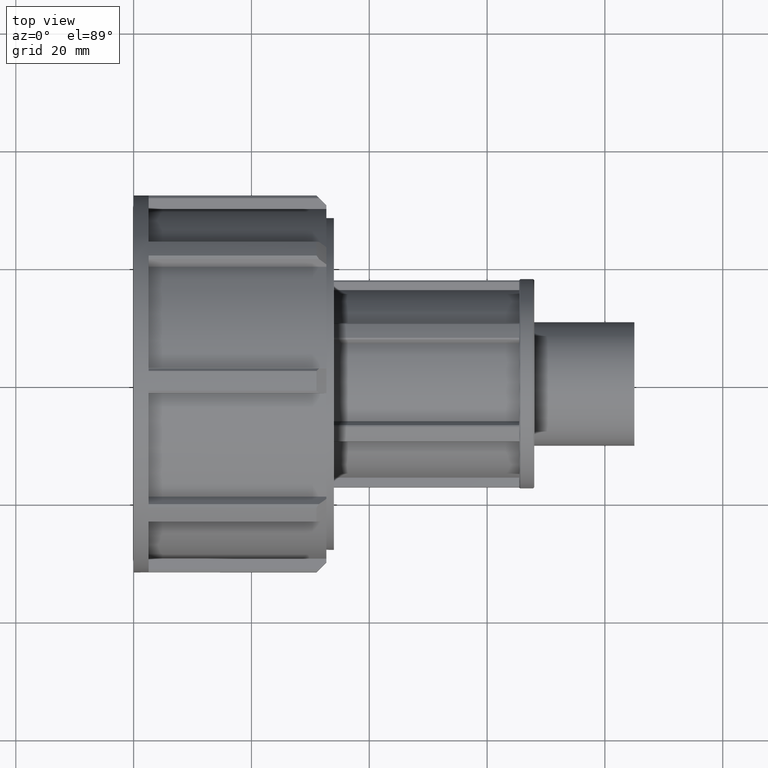
[diagram: clean part render]
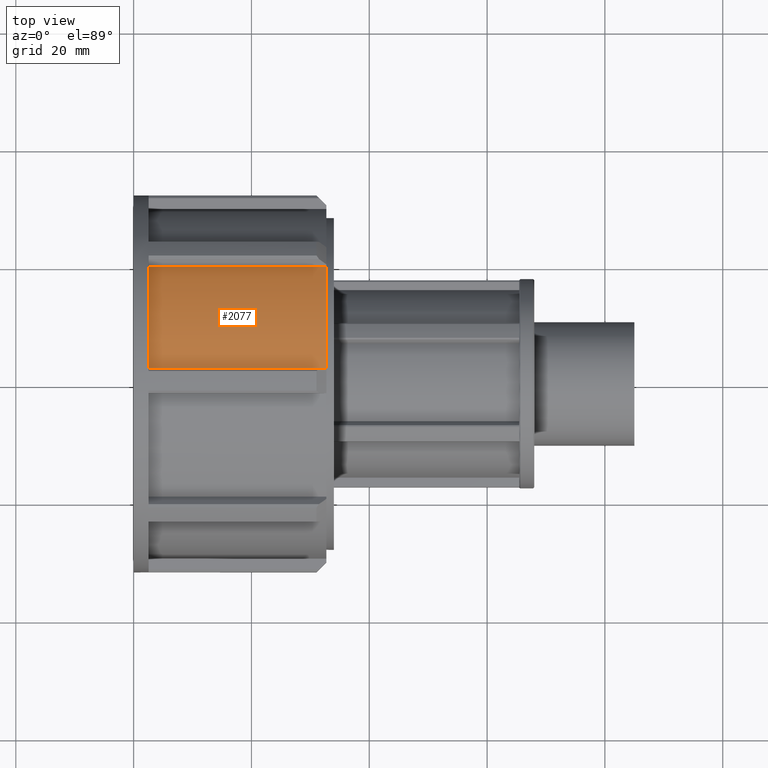
[diagram: same view with one face highlighted and labeled with its STEP entity id]
A machine part, top view. The second image highlights one B-rep face of the part: STEP entity #2077.
In plain terms, the highlighted cylindrical surface (partial cylindrical patch) has radius 29.76 mm, axis along (1, 0, 0).
Its self-contained STEP definition (entity closure, byte-faithful):
#149=CIRCLE('',#2257,29.76);
#152=CIRCLE('',#2266,29.76);
#187=CYLINDRICAL_SURFACE('',#2265,29.76);
#294=FACE_OUTER_BOUND('',#417,.T.);
#417=EDGE_LOOP('',(#1865,#1866,#1867,#1868));
#554=LINE('',#3210,#734);
#627=LINE('',#3514,#807);
#734=VECTOR('',#2593,30.175);
#807=VECTOR('',#2814,30.175);
#926=VERTEX_POINT('',#3207);
#927=VERTEX_POINT('',#3209);
#993=VERTEX_POINT('',#3481);
#1000=VERTEX_POINT('',#3513);
#1171=EDGE_CURVE('',#927,#926,#554,.T.);
#1283=EDGE_CURVE('',#927,#993,#149,.T.);
#1295=EDGE_CURVE('',#1000,#993,#627,.T.);
#1297=EDGE_CURVE('',#926,#1000,#152,.T.);
#1865=ORIENTED_EDGE('',*,*,#1171,.T.);
#1866=ORIENTED_EDGE('',*,*,#1297,.T.);
#1867=ORIENTED_EDGE('',*,*,#1295,.T.);
#1868=ORIENTED_EDGE('',*,*,#1283,.F.);
#2077=ADVANCED_FACE('',(#294),#187,.T.);
#2257=AXIS2_PLACEMENT_3D('',#3482,#2793,#2794);
#2265=AXIS2_PLACEMENT_3D('',#3516,#2816,#2817);
#2266=AXIS2_PLACEMENT_3D('',#3517,#2818,#2819);
#2593=DIRECTION('',(-1.,0.,0.));
#2793=DIRECTION('center_axis',(1.,0.,0.));
#2794=DIRECTION('ref_axis',(0.,0.,-1.));
#2814=DIRECTION('',(1.,0.,0.));
#2816=DIRECTION('center_axis',(1.,0.,0.));
#2817=DIRECTION('ref_axis',(0.,1.,0.));
#2818=DIRECTION('center_axis',(1.,0.,0.));
#2819=DIRECTION('ref_axis',(0.,0.,-1.));
#3207=CARTESIAN_POINT('',(2.55,19.5095235397556,22.4730080597085));
#3209=CARTESIAN_POINT('',(32.725,19.5095235397556,22.4730080597084));
#3210=CARTESIAN_POINT('',(17.6375,19.5095235397556,22.4730080597085));
#3481=CARTESIAN_POINT('',(32.725,2.0955,29.6861327853596));
#3482=CARTESIAN_POINT('Origin',(32.725,0.,0.));
#3513=CARTESIAN_POINT('',(2.55000000000001,2.0955,29.6861327853596));
#3514=CARTESIAN_POINT('',(17.6375,2.0955,29.6861327853596));
#3516=CARTESIAN_POINT('Origin',(17.6375,0.,0.));
#3517=CARTESIAN_POINT('Origin',(2.55000000000001,0.,0.));